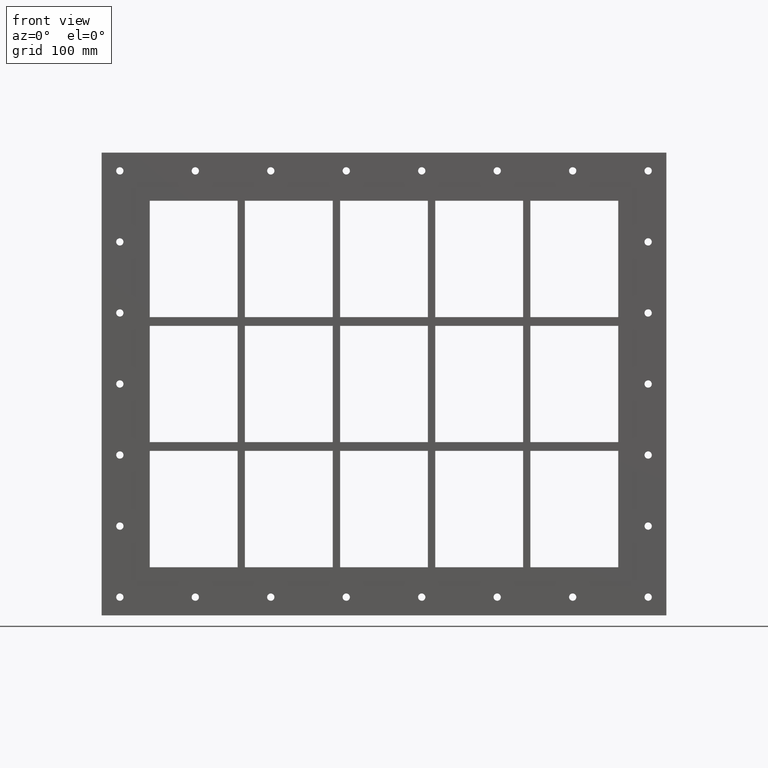
[diagram: clean part render]
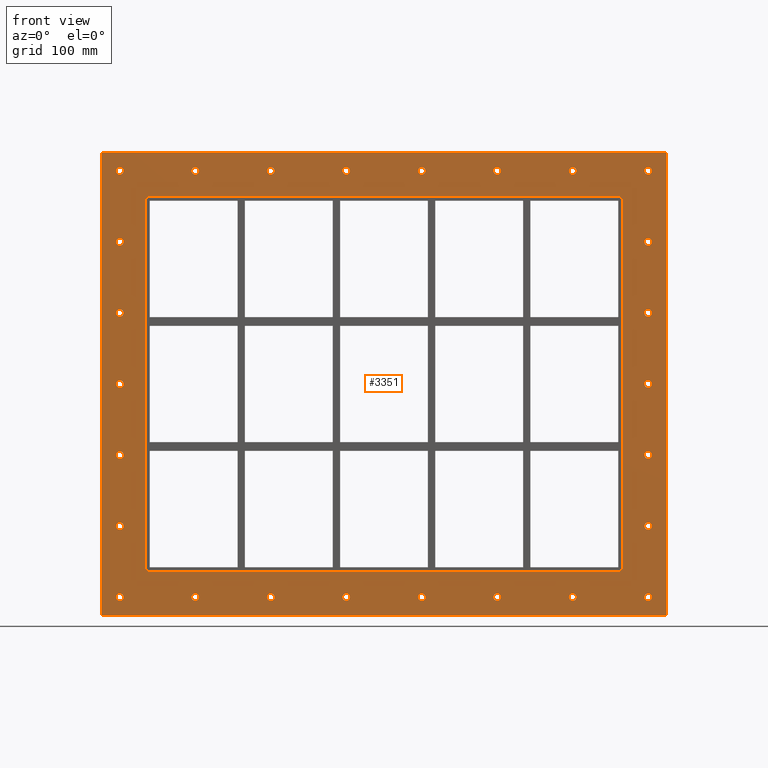
[diagram: same view with one face highlighted and labeled with its STEP entity id]
A machine part, front view. The second image highlights one B-rep face of the part: STEP entity #3351.
In plain terms, the highlighted planar face has unit normal (0, 1, 0).
Its self-contained STEP definition (entity closure, byte-faithful):
#84=CARTESIAN_POINT('',(-357.25000000000011,0.0,-292.25000000000011));
#85=VERTEX_POINT('',#84);
#86=CARTESIAN_POINT('',(-362.25000000000011,0.0,-292.25000000000011));
#87=DIRECTION('',(0.0,1.0,0.0));
#88=DIRECTION('',(1.0,0.0,0.0));
#89=AXIS2_PLACEMENT_3D('',#86,#87,#88);
#90=CIRCLE('',#89,5.0);
#91=EDGE_CURVE('',#85,#85,#90,.T.);
#112=CARTESIAN_POINT('',(367.25000000000011,0.0,-194.83000000000007));
#113=VERTEX_POINT('',#112);
#114=CARTESIAN_POINT('',(362.25000000000011,0.0,-194.83000000000007));
#115=DIRECTION('',(0.0,1.0,0.0));
#116=DIRECTION('',(1.0,0.0,0.0));
#117=AXIS2_PLACEMENT_3D('',#114,#115,#116);
#118=CIRCLE('',#117,5.0);
#119=EDGE_CURVE('',#113,#113,#118,.T.);
#140=CARTESIAN_POINT('',(-357.25000000000011,0.0,-194.83000000000007));
#141=VERTEX_POINT('',#140);
#142=CARTESIAN_POINT('',(-362.25000000000011,0.0,-194.83000000000007));
#143=DIRECTION('',(0.0,1.0,0.0));
#144=DIRECTION('',(1.0,0.0,0.0));
#145=AXIS2_PLACEMENT_3D('',#142,#143,#144);
#146=CIRCLE('',#145,5.0);
#147=EDGE_CURVE('',#141,#141,#146,.T.);
#168=CARTESIAN_POINT('',(367.25000000000011,0.0,-97.410000000000068));
#169=VERTEX_POINT('',#168);
#170=CARTESIAN_POINT('',(362.25000000000011,0.0,-97.410000000000068));
#171=DIRECTION('',(0.0,1.0,0.0));
#172=DIRECTION('',(1.0,0.0,0.0));
#173=AXIS2_PLACEMENT_3D('',#170,#171,#172);
#174=CIRCLE('',#173,5.0);
#175=EDGE_CURVE('',#169,#169,#174,.T.);
#196=CARTESIAN_POINT('',(-357.25000000000011,0.0,-97.410000000000068));
#197=VERTEX_POINT('',#196);
#198=CARTESIAN_POINT('',(-362.25000000000011,0.0,-97.410000000000068));
#199=DIRECTION('',(0.0,1.0,0.0));
#200=DIRECTION('',(1.0,0.0,0.0));
#201=AXIS2_PLACEMENT_3D('',#198,#199,#200);
#202=CIRCLE('',#201,5.0);
#203=EDGE_CURVE('',#197,#197,#202,.T.);
#224=CARTESIAN_POINT('',(367.25000000000011,0.0,0.009999999999941));
#225=VERTEX_POINT('',#224);
#226=CARTESIAN_POINT('',(362.25000000000011,0.0,0.009999999999941));
#227=DIRECTION('',(0.0,1.0,0.0));
#228=DIRECTION('',(1.0,0.0,0.0));
#229=AXIS2_PLACEMENT_3D('',#226,#227,#228);
#230=CIRCLE('',#229,5.0);
#231=EDGE_CURVE('',#225,#225,#230,.T.);
#252=CARTESIAN_POINT('',(-357.25000000000011,0.0,0.009999999999941));
#253=VERTEX_POINT('',#252);
#254=CARTESIAN_POINT('',(-362.25000000000011,0.0,0.009999999999941));
#255=DIRECTION('',(0.0,1.0,0.0));
#256=DIRECTION('',(1.0,0.0,0.0));
#257=AXIS2_PLACEMENT_3D('',#254,#255,#256);
#258=CIRCLE('',#257,5.0);
#259=EDGE_CURVE('',#253,#253,#258,.T.);
#280=CARTESIAN_POINT('',(367.25000000000011,0.0,97.42999999999995));
#281=VERTEX_POINT('',#280);
#282=CARTESIAN_POINT('',(362.25000000000011,0.0,97.42999999999995));
#283=DIRECTION('',(0.0,1.0,0.0));
#284=DIRECTION('',(1.0,0.0,0.0));
#285=AXIS2_PLACEMENT_3D('',#282,#283,#284);
#286=CIRCLE('',#285,5.0);
#287=EDGE_CURVE('',#281,#281,#286,.T.);
#308=CARTESIAN_POINT('',(-357.25000000000011,0.0,97.42999999999995));
#309=VERTEX_POINT('',#308);
#310=CARTESIAN_POINT('',(-362.25000000000011,0.0,97.42999999999995));
#311=DIRECTION('',(0.0,1.0,0.0));
#312=DIRECTION('',(1.0,0.0,0.0));
#313=AXIS2_PLACEMENT_3D('',#310,#311,#312);
#314=CIRCLE('',#313,5.0);
#315=EDGE_CURVE('',#309,#309,#314,.T.);
#336=CARTESIAN_POINT('',(367.25000000000011,0.0,194.84999999999997));
#337=VERTEX_POINT('',#336);
#338=CARTESIAN_POINT('',(362.25000000000011,0.0,194.84999999999997));
#339=DIRECTION('',(0.0,1.0,0.0));
#340=DIRECTION('',(1.0,0.0,0.0));
#341=AXIS2_PLACEMENT_3D('',#338,#339,#340);
#342=CIRCLE('',#341,5.0);
#343=EDGE_CURVE('',#337,#337,#342,.T.);
#364=CARTESIAN_POINT('',(-357.25000000000011,0.0,194.84999999999997));
#365=VERTEX_POINT('',#364);
#366=CARTESIAN_POINT('',(-362.25000000000011,0.0,194.84999999999997));
#367=DIRECTION('',(0.0,1.0,0.0));
#368=DIRECTION('',(1.0,0.0,0.0));
#369=AXIS2_PLACEMENT_3D('',#366,#367,#368);
#370=CIRCLE('',#369,5.0);
#371=EDGE_CURVE('',#365,#365,#370,.T.);
#392=CARTESIAN_POINT('',(-253.75,0.0,292.26999999999998));
#393=VERTEX_POINT('',#392);
#394=CARTESIAN_POINT('',(-258.75,0.0,292.26999999999998));
#395=DIRECTION('',(0.0,1.0,0.0));
#396=DIRECTION('',(1.0,0.0,0.0));
#397=AXIS2_PLACEMENT_3D('',#394,#395,#396);
#398=CIRCLE('',#397,5.0);
#399=EDGE_CURVE('',#393,#393,#398,.T.);
#420=CARTESIAN_POINT('',(-253.75,0.0,-292.25000000000006));
#421=VERTEX_POINT('',#420);
#422=CARTESIAN_POINT('',(-258.75,0.0,-292.25000000000006));
#423=DIRECTION('',(0.0,1.0,0.0));
#424=DIRECTION('',(1.0,0.0,0.0));
#425=AXIS2_PLACEMENT_3D('',#422,#423,#424);
#426=CIRCLE('',#425,5.0);
#427=EDGE_CURVE('',#421,#421,#426,.T.);
#448=CARTESIAN_POINT('',(-150.25,0.0,292.26999999999998));
#449=VERTEX_POINT('',#448);
#450=CARTESIAN_POINT('',(-155.25,0.0,292.26999999999998));
#451=DIRECTION('',(0.0,1.0,0.0));
#452=DIRECTION('',(1.0,0.0,0.0));
#453=AXIS2_PLACEMENT_3D('',#450,#451,#452);
#454=CIRCLE('',#453,5.0);
#455=EDGE_CURVE('',#449,#449,#454,.T.);
#476=CARTESIAN_POINT('',(-150.25,0.0,-292.25000000000006));
#477=VERTEX_POINT('',#476);
#478=CARTESIAN_POINT('',(-155.25,0.0,-292.25000000000006));
#479=DIRECTION('',(0.0,1.0,0.0));
#480=DIRECTION('',(1.0,0.0,0.0));
#481=AXIS2_PLACEMENT_3D('',#478,#479,#480);
#482=CIRCLE('',#481,5.0);
#483=EDGE_CURVE('',#477,#477,#482,.T.);
#504=CARTESIAN_POINT('',(-46.749999999999972,0.0,292.26999999999998));
#505=VERTEX_POINT('',#504);
#506=CARTESIAN_POINT('',(-51.749999999999972,0.0,292.26999999999998));
#507=DIRECTION('',(0.0,1.0,0.0));
#508=DIRECTION('',(1.0,0.0,0.0));
#509=AXIS2_PLACEMENT_3D('',#506,#507,#508);
#510=CIRCLE('',#509,5.0);
#511=EDGE_CURVE('',#505,#505,#510,.T.);
#532=CARTESIAN_POINT('',(-46.749999999999972,0.0,-292.25000000000006));
#533=VERTEX_POINT('',#532);
#534=CARTESIAN_POINT('',(-51.749999999999972,0.0,-292.25000000000006));
#535=DIRECTION('',(0.0,1.0,0.0));
#536=DIRECTION('',(1.0,0.0,0.0));
#537=AXIS2_PLACEMENT_3D('',#534,#535,#536);
#538=CIRCLE('',#537,5.0);
#539=EDGE_CURVE('',#533,#533,#538,.T.);
#560=CARTESIAN_POINT('',(56.750000000000043,0.0,292.26999999999998));
#561=VERTEX_POINT('',#560);
#562=CARTESIAN_POINT('',(51.750000000000043,0.0,292.26999999999998));
#563=DIRECTION('',(0.0,1.0,0.0));
#564=DIRECTION('',(1.0,0.0,0.0));
#565=AXIS2_PLACEMENT_3D('',#562,#563,#564);
#566=CIRCLE('',#565,5.0);
#567=EDGE_CURVE('',#561,#561,#566,.T.);
#588=CARTESIAN_POINT('',(56.750000000000043,0.0,-292.25000000000006));
#589=VERTEX_POINT('',#588);
#590=CARTESIAN_POINT('',(51.750000000000043,0.0,-292.25000000000006));
#591=DIRECTION('',(0.0,1.0,0.0));
#592=DIRECTION('',(1.0,0.0,0.0));
#593=AXIS2_PLACEMENT_3D('',#590,#591,#592);
#594=CIRCLE('',#593,5.0);
#595=EDGE_CURVE('',#589,#589,#594,.T.);
#616=CARTESIAN_POINT('',(160.25000000000006,0.0,292.26999999999998));
#617=VERTEX_POINT('',#616);
#618=CARTESIAN_POINT('',(155.25000000000006,0.0,292.26999999999998));
#619=DIRECTION('',(0.0,1.0,0.0));
#620=DIRECTION('',(1.0,0.0,0.0));
#621=AXIS2_PLACEMENT_3D('',#618,#619,#620);
#622=CIRCLE('',#621,5.0);
#623=EDGE_CURVE('',#617,#617,#622,.T.);
#644=CARTESIAN_POINT('',(160.25000000000006,0.0,-292.25000000000006));
#645=VERTEX_POINT('',#644);
#646=CARTESIAN_POINT('',(155.25000000000006,0.0,-292.25000000000006));
#647=DIRECTION('',(0.0,1.0,0.0));
#648=DIRECTION('',(1.0,0.0,0.0));
#649=AXIS2_PLACEMENT_3D('',#646,#647,#648);
#650=CIRCLE('',#649,5.0);
#651=EDGE_CURVE('',#645,#645,#650,.T.);
#672=CARTESIAN_POINT('',(263.75000000000006,0.0,292.26999999999998));
#673=VERTEX_POINT('',#672);
#674=CARTESIAN_POINT('',(258.75000000000006,0.0,292.26999999999998));
#675=DIRECTION('',(0.0,1.0,0.0));
#676=DIRECTION('',(1.0,0.0,0.0));
#677=AXIS2_PLACEMENT_3D('',#674,#675,#676);
#678=CIRCLE('',#677,5.0);
#679=EDGE_CURVE('',#673,#673,#678,.T.);
#700=CARTESIAN_POINT('',(263.75000000000006,0.0,-292.25000000000006));
#701=VERTEX_POINT('',#700);
#702=CARTESIAN_POINT('',(258.75000000000006,0.0,-292.25000000000006));
#703=DIRECTION('',(0.0,1.0,0.0));
#704=DIRECTION('',(1.0,0.0,0.0));
#705=AXIS2_PLACEMENT_3D('',#702,#703,#704);
#706=CIRCLE('',#705,5.0);
#707=EDGE_CURVE('',#701,#701,#706,.T.);
#728=CARTESIAN_POINT('',(367.25000000000011,0.0,-292.25000000000006));
#729=VERTEX_POINT('',#728);
#730=CARTESIAN_POINT('',(362.25000000000011,0.0,-292.25000000000006));
#731=DIRECTION('',(0.0,1.0,0.0));
#732=DIRECTION('',(1.0,0.0,0.0));
#733=AXIS2_PLACEMENT_3D('',#730,#731,#732);
#734=CIRCLE('',#733,5.0);
#735=EDGE_CURVE('',#729,#729,#734,.T.);
#756=CARTESIAN_POINT('',(-357.25000000000011,0.0,292.26999999999998));
#757=VERTEX_POINT('',#756);
#758=CARTESIAN_POINT('',(-362.25000000000011,0.0,292.26999999999998));
#759=DIRECTION('',(0.0,1.0,0.0));
#760=DIRECTION('',(1.0,0.0,0.0));
#761=AXIS2_PLACEMENT_3D('',#758,#759,#760);
#762=CIRCLE('',#761,5.0);
#763=EDGE_CURVE('',#757,#757,#762,.T.);
#784=CARTESIAN_POINT('',(367.25000000000011,0.0,292.26999999999998));
#785=VERTEX_POINT('',#784);
#786=CARTESIAN_POINT('',(362.25000000000011,0.0,292.26999999999998));
#787=DIRECTION('',(0.0,1.0,0.0));
#788=DIRECTION('',(1.0,0.0,0.0));
#789=AXIS2_PLACEMENT_3D('',#786,#787,#788);
#790=CIRCLE('',#789,5.0);
#791=EDGE_CURVE('',#785,#785,#790,.T.);
#3164=CARTESIAN_POINT('',(8.472050E-014,0.0,7.999279E-015));
#3165=DIRECTION('',(0.0,1.0,0.0));
#3166=DIRECTION('',(0.0,0.0,1.0));
#3167=AXIS2_PLACEMENT_3D('',#3164,#3165,#3166);
#3168=PLANE('',#3167);
#3169=CARTESIAN_POINT('',(-387.25,0.0,317.25000000000011));
#3170=VERTEX_POINT('',#3169);
#3171=CARTESIAN_POINT('',(387.25000000000017,0.0,317.25000000000011));
#3172=VERTEX_POINT('',#3171);
#3173=CARTESIAN_POINT('',(-387.25,0.0,317.25000000000011));
#3174=DIRECTION('',(1.0,0.0,0.0));
#3175=VECTOR('',#3174,774.50000000000023);
#3176=LINE('',#3173,#3175);
#3177=EDGE_CURVE('',#3170,#3172,#3176,.T.);
#3178=ORIENTED_EDGE('',*,*,#3177,.F.);
#3179=CARTESIAN_POINT('',(-387.25,0.0,-317.25000000000006));
#3180=VERTEX_POINT('',#3179);
#3181=CARTESIAN_POINT('',(-387.25,0.0,-317.25000000000006));
#3182=DIRECTION('',(0.0,0.0,1.0));
#3183=VECTOR('',#3182,634.50000000000023);
#3184=LINE('',#3181,#3183);
#3185=EDGE_CURVE('',#3180,#3170,#3184,.T.);
#3186=ORIENTED_EDGE('',*,*,#3185,.F.);
#3187=CARTESIAN_POINT('',(387.25000000000017,0.0,-317.25000000000006));
#3188=VERTEX_POINT('',#3187);
#3189=CARTESIAN_POINT('',(387.25000000000017,0.0,-317.25000000000006));
#3190=DIRECTION('',(-1.0,0.0,0.0));
#3191=VECTOR('',#3190,774.50000000000023);
#3192=LINE('',#3189,#3191);
#3193=EDGE_CURVE('',#3188,#3180,#3192,.T.);
#3194=ORIENTED_EDGE('',*,*,#3193,.F.);
#3195=CARTESIAN_POINT('',(387.25000000000017,0.0,317.25000000000011));
#3196=DIRECTION('',(0.0,0.0,-1.0));
#3197=VECTOR('',#3196,634.50000000000023);
#3198=LINE('',#3195,#3197);
#3199=EDGE_CURVE('',#3172,#3188,#3198,.T.);
#3200=ORIENTED_EDGE('',*,*,#3199,.F.);
#3201=EDGE_LOOP('',(#3178,#3186,#3194,#3200));
#3202=FACE_OUTER_BOUND('',#3201,.T.);
#3203=ORIENTED_EDGE('',*,*,#91,.T.);
#3204=EDGE_LOOP('',(#3203));
#3205=FACE_BOUND('',#3204,.T.);
#3206=ORIENTED_EDGE('',*,*,#119,.T.);
#3207=EDGE_LOOP('',(#3206));
#3208=FACE_BOUND('',#3207,.T.);
#3209=ORIENTED_EDGE('',*,*,#147,.T.);
#3210=EDGE_LOOP('',(#3209));
#3211=FACE_BOUND('',#3210,.T.);
#3212=ORIENTED_EDGE('',*,*,#175,.T.);
#3213=EDGE_LOOP('',(#3212));
#3214=FACE_BOUND('',#3213,.T.);
#3215=ORIENTED_EDGE('',*,*,#203,.T.);
#3216=EDGE_LOOP('',(#3215));
#3217=FACE_BOUND('',#3216,.T.);
#3218=ORIENTED_EDGE('',*,*,#231,.T.);
#3219=EDGE_LOOP('',(#3218));
#3220=FACE_BOUND('',#3219,.T.);
#3221=ORIENTED_EDGE('',*,*,#259,.T.);
#3222=EDGE_LOOP('',(#3221));
#3223=FACE_BOUND('',#3222,.T.);
#3224=ORIENTED_EDGE('',*,*,#287,.T.);
#3225=EDGE_LOOP('',(#3224));
#3226=FACE_BOUND('',#3225,.T.);
#3227=ORIENTED_EDGE('',*,*,#315,.T.);
#3228=EDGE_LOOP('',(#3227));
#3229=FACE_BOUND('',#3228,.T.);
#3230=ORIENTED_EDGE('',*,*,#343,.T.);
#3231=EDGE_LOOP('',(#3230));
#3232=FACE_BOUND('',#3231,.T.);
#3233=ORIENTED_EDGE('',*,*,#371,.T.);
#3234=EDGE_LOOP('',(#3233));
#3235=FACE_BOUND('',#3234,.T.);
#3236=ORIENTED_EDGE('',*,*,#399,.T.);
#3237=EDGE_LOOP('',(#3236));
#3238=FACE_BOUND('',#3237,.T.);
#3239=ORIENTED_EDGE('',*,*,#427,.T.);
#3240=EDGE_LOOP('',(#3239));
#3241=FACE_BOUND('',#3240,.T.);
#3242=ORIENTED_EDGE('',*,*,#455,.T.);
#3243=EDGE_LOOP('',(#3242));
#3244=FACE_BOUND('',#3243,.T.);
#3245=ORIENTED_EDGE('',*,*,#483,.T.);
#3246=EDGE_LOOP('',(#3245));
#3247=FACE_BOUND('',#3246,.T.);
#3248=ORIENTED_EDGE('',*,*,#511,.T.);
#3249=EDGE_LOOP('',(#3248));
#3250=FACE_BOUND('',#3249,.T.);
#3251=ORIENTED_EDGE('',*,*,#539,.T.);
#3252=EDGE_LOOP('',(#3251));
#3253=FACE_BOUND('',#3252,.T.);
#3254=ORIENTED_EDGE('',*,*,#567,.T.);
#3255=EDGE_LOOP('',(#3254));
#3256=FACE_BOUND('',#3255,.T.);
#3257=ORIENTED_EDGE('',*,*,#595,.T.);
#3258=EDGE_LOOP('',(#3257));
#3259=FACE_BOUND('',#3258,.T.);
#3260=ORIENTED_EDGE('',*,*,#623,.T.);
#3261=EDGE_LOOP('',(#3260));
#3262=FACE_BOUND('',#3261,.T.);
#3263=ORIENTED_EDGE('',*,*,#651,.T.);
#3264=EDGE_LOOP('',(#3263));
#3265=FACE_BOUND('',#3264,.T.);
#3266=ORIENTED_EDGE('',*,*,#679,.T.);
#3267=EDGE_LOOP('',(#3266));
#3268=FACE_BOUND('',#3267,.T.);
#3269=ORIENTED_EDGE('',*,*,#707,.T.);
#3270=EDGE_LOOP('',(#3269));
#3271=FACE_BOUND('',#3270,.T.);
#3272=ORIENTED_EDGE('',*,*,#735,.T.);
#3273=EDGE_LOOP('',(#3272));
#3274=FACE_BOUND('',#3273,.T.);
#3275=ORIENTED_EDGE('',*,*,#763,.T.);
#3276=EDGE_LOOP('',(#3275));
#3277=FACE_BOUND('',#3276,.T.);
#3278=ORIENTED_EDGE('',*,*,#791,.T.);
#3279=EDGE_LOOP('',(#3278));
#3280=FACE_BOUND('',#3279,.T.);
#3281=CARTESIAN_POINT('',(-327.25000000000011,0.0,-251.25));
#3282=VERTEX_POINT('',#3281);
#3283=CARTESIAN_POINT('',(-321.25000000000006,0.0,-257.25));
#3284=VERTEX_POINT('',#3283);
#3285=CARTESIAN_POINT('',(-321.25000000000006,0.0,-251.25));
#3286=DIRECTION('',(0.0,-1.0,0.0));
#3287=DIRECTION('',(-0.707106781186552,0.0,-0.707106781186543));
#3288=AXIS2_PLACEMENT_3D('',#3285,#3286,#3287);
#3289=CIRCLE('',#3288,6.0);
#3290=EDGE_CURVE('',#3282,#3284,#3289,.T.);
#3291=ORIENTED_EDGE('',*,*,#3290,.F.);
#3292=CARTESIAN_POINT('',(-327.25000000000011,0.0,251.25));
#3293=VERTEX_POINT('',#3292);
#3294=CARTESIAN_POINT('',(-327.25000000000011,0.0,251.25));
#3295=DIRECTION('',(0.0,0.0,-1.0));
#3296=VECTOR('',#3295,502.5);
#3297=LINE('',#3294,#3296);
#3298=EDGE_CURVE('',#3293,#3282,#3297,.T.);
#3299=ORIENTED_EDGE('',*,*,#3298,.F.);
#3300=CARTESIAN_POINT('',(-321.25000000000011,0.0,257.25));
#3301=VERTEX_POINT('',#3300);
#3302=CARTESIAN_POINT('',(-321.25000000000011,0.0,251.25));
#3303=DIRECTION('',(0.0,-1.0,0.0));
#3304=DIRECTION('',(-0.707106781186543,0.0,0.707106781186552));
#3305=AXIS2_PLACEMENT_3D('',#3302,#3303,#3304);
#3306=CIRCLE('',#3305,6.000000000000001);
#3307=EDGE_CURVE('',#3301,#3293,#3306,.T.);
#3308=ORIENTED_EDGE('',*,*,#3307,.F.);
#3309=CARTESIAN_POINT('',(321.25,0.0,257.25));
#3310=VERTEX_POINT('',#3309);
#3311=CARTESIAN_POINT('',(321.25,0.0,257.25));
#3312=DIRECTION('',(-1.0,0.0,0.0));
#3313=VECTOR('',#3312,642.50000000000011);
#3314=LINE('',#3311,#3313);
#3315=EDGE_CURVE('',#3310,#3301,#3314,.T.);
#3316=ORIENTED_EDGE('',*,*,#3315,.F.);
#3317=CARTESIAN_POINT('',(327.25,0.0,251.25));
#3318=VERTEX_POINT('',#3317);
#3319=CARTESIAN_POINT('',(321.25,0.0,251.25));
#3320=DIRECTION('',(0.0,-1.0,0.0));
#3321=DIRECTION('',(0.707106781186543,0.0,0.707106781186552));
#3322=AXIS2_PLACEMENT_3D('',#3319,#3320,#3321);
#3323=CIRCLE('',#3322,6.000000000000001);
#3324=EDGE_CURVE('',#3318,#3310,#3323,.T.);
#3325=ORIENTED_EDGE('',*,*,#3324,.F.);
#3326=CARTESIAN_POINT('',(327.25,0.0,-251.25));
#3327=VERTEX_POINT('',#3326);
#3328=CARTESIAN_POINT('',(327.25,0.0,-251.25));
#3329=DIRECTION('',(0.0,0.0,1.0));
#3330=VECTOR('',#3329,502.5);
#3331=LINE('',#3328,#3330);
#3332=EDGE_CURVE('',#3327,#3318,#3331,.T.);
#3333=ORIENTED_EDGE('',*,*,#3332,.F.);
#3334=CARTESIAN_POINT('',(321.25,0.0,-257.25));
#3335=VERTEX_POINT('',#3334);
#3336=CARTESIAN_POINT('',(321.25,0.0,-251.25));
#3337=DIRECTION('',(0.0,-1.0,0.0));
#3338=DIRECTION('',(0.707106781186543,0.0,-0.707106781186552));
#3339=AXIS2_PLACEMENT_3D('',#3336,#3337,#3338);
#3340=CIRCLE('',#3339,6.000000000000001);
#3341=EDGE_CURVE('',#3335,#3327,#3340,.T.);
#3342=ORIENTED_EDGE('',*,*,#3341,.F.);
#3343=CARTESIAN_POINT('',(-321.25000000000006,0.0,-257.25));
#3344=DIRECTION('',(1.0,0.0,0.0));
#3345=VECTOR('',#3344,642.5);
#3346=LINE('',#3343,#3345);
#3347=EDGE_CURVE('',#3284,#3335,#3346,.T.);
#3348=ORIENTED_EDGE('',*,*,#3347,.F.);
#3349=EDGE_LOOP('',(#3291,#3299,#3308,#3316,#3325,#3333,#3342,#3348));
#3350=FACE_BOUND('',#3349,.T.);
#3351=ADVANCED_FACE('',(#3202,#3205,#3208,#3211,#3214,#3217,#3220,#3223,#3226,#3229,#3232,#3235,#3238,#3241,#3244,#3247,#3250,#3253,#3256,#3259,#3262,#3265,#3268,#3271,#3274,#3277,#3280,#3350),#3168,.F.);